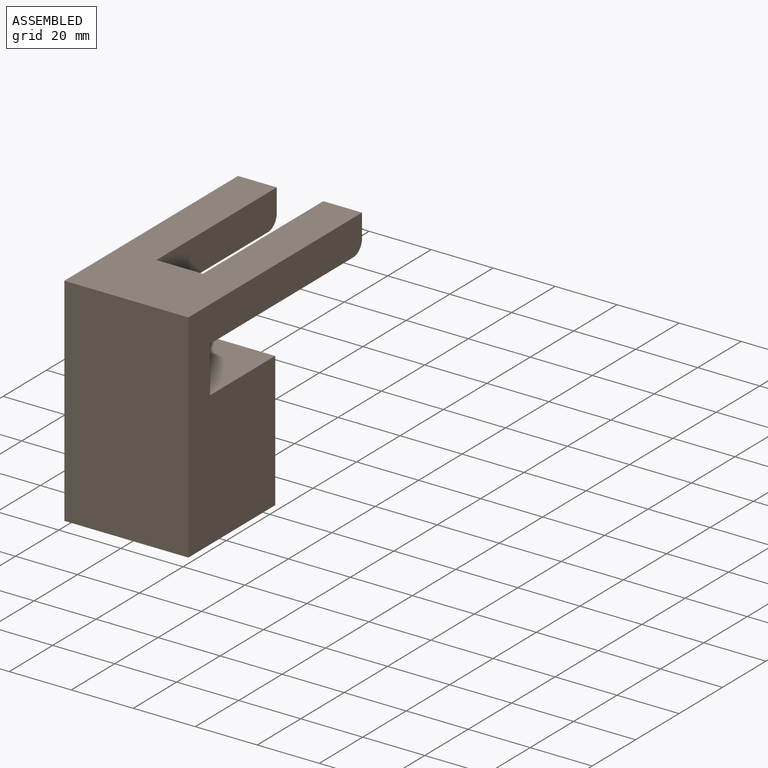
[diagram: assembled view]
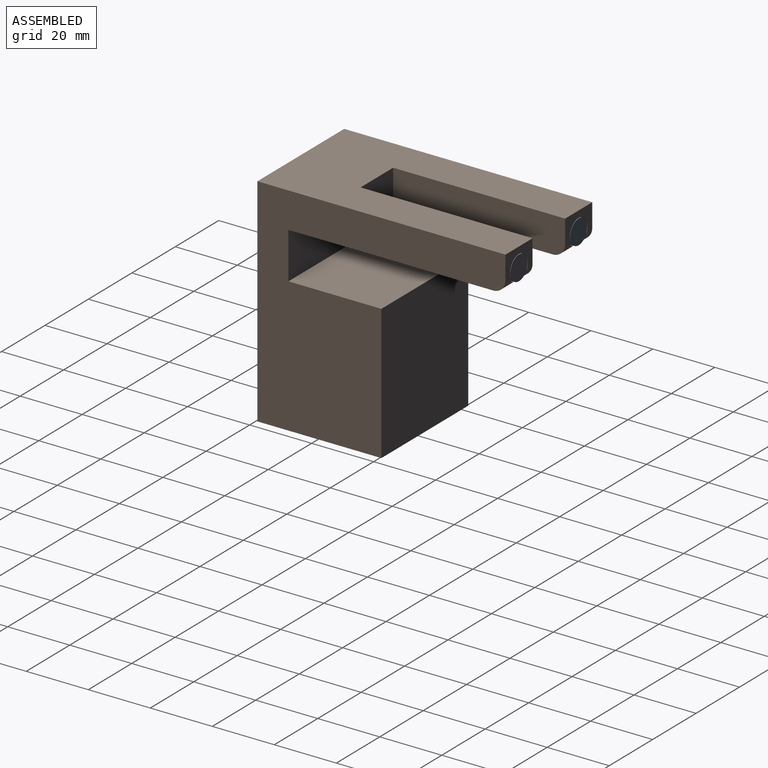
[diagram: assembled view, second angle]
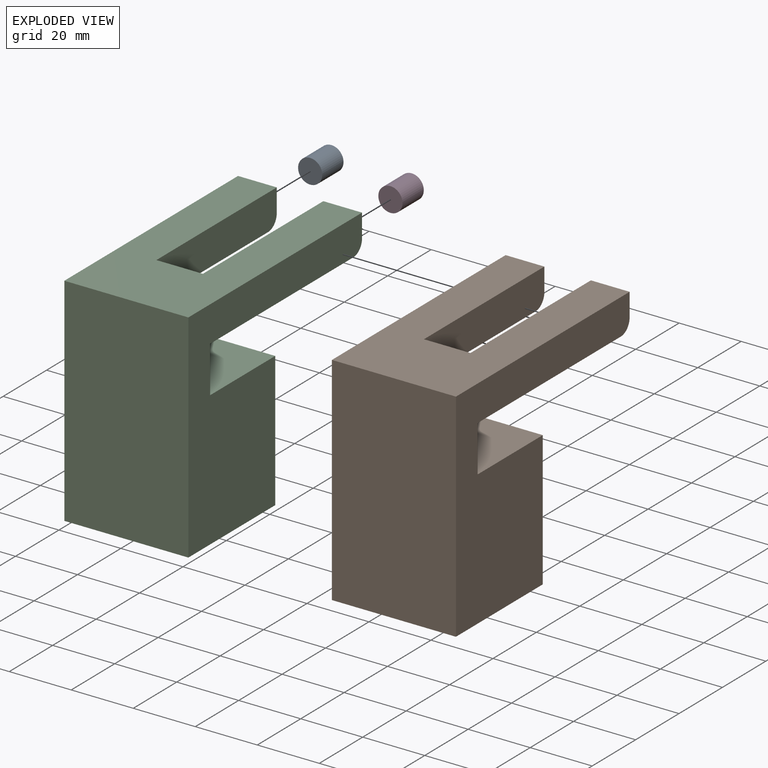
[diagram: exploded view]
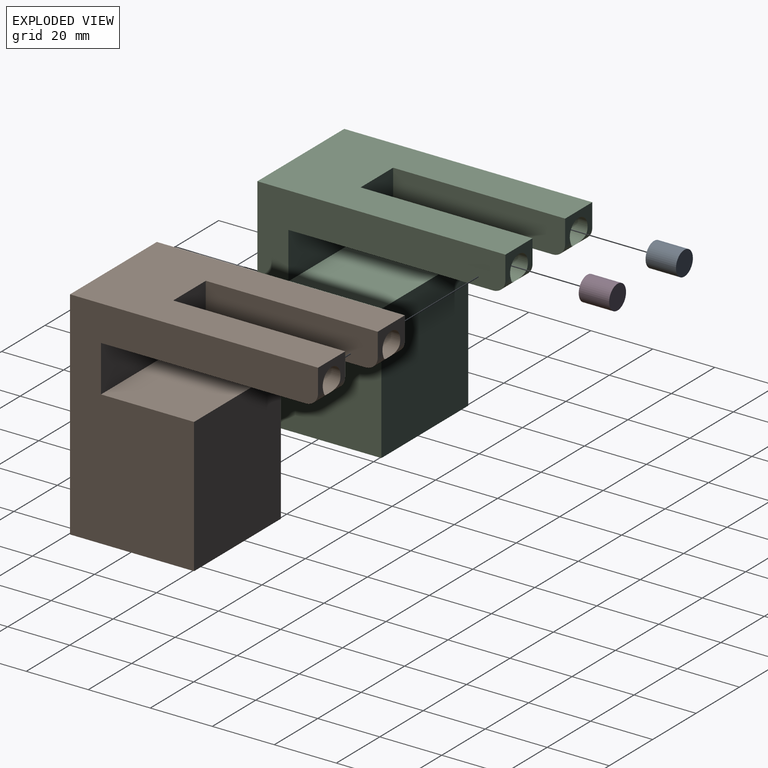
[diagram: exploded view, second angle]
ASSEMBLY  parts=4 mates=2
PART A: 3 faces, bbox 7.8x9.8x7.8 mm
  f0: cylinder r=3.9mm len=9.8mm, axis (0,1,0), area 240.1mm2, adj f1,f2
  f1: plane 7.8x7.8mm, normal (0,-1,0), area 47.8mm2, adj f0
  f2: plane 7.8x7.8mm, normal (0,1,0), area 47.8mm2, adj f0
PART B: 20 faces, bbox 40x80x70 mm
  f0: plane 12.5x7.5mm, normal (0,1,0), area 57.3mm2, adj f6,f8,f10,f12,f16
  f1: cylinder r=4mm len=12.5mm, axis (-1,0,0), area 61mm2, adj f5,f7,f11,f13,f18
  f2: plane 43.5x40mm, normal (0,1,0), area 1740mm2, adj f3,f10,f11,f15
  f3: plane 40x30mm, normal (0,0,1), area 1200mm2, adj f2,f4,f10,f11
  f4: plane 40x15mm, normal (0,1,0), area 600mm2, adj f3,f5,f10,f11
  f5: plane 66x40mm, normal (0,0,-1), area 1868mm2, adj f1,f4,f6,f10,f11,f12,f13,f14
  f6: cylinder r=4mm len=12.5mm, axis (-1,0,0), area 61mm2, adj f0,f5,f10,f12,f16
  f7: plane 12.5x7.5mm, normal (0,1,0), area 57.3mm2, adj f1,f8,f11,f13,f18
  f8: plane 80x40mm, normal (0,0,1), area 2368mm2, adj f0,f7,f9,f10,f11,f12,f13,f14
  f9: plane 70x40mm, normal (0,-1,0), area 2800mm2, adj f8,f10,f11,f15
  f10: plane 80x70mm, normal (1,0,0), area 2806.6mm2, adj f0,f2,f3,f4,f5,f6,f8,f9
  f11: plane 80x70mm, normal (-1,0,0), area 2806.6mm2, adj f1,f2,f3,f4,f5,f7,f8,f9
  f12: plane 55.47x11.5mm, normal (-1,0,0), area 634.4mm2, adj f0,f5,f6,f8,f14
  f13: plane 55.47x11.5mm, normal (1,0,0), area 634.4mm2, adj f1,f5,f7,f8,f14
  f14: plane 15x11.5mm, normal (0,1,0), area 172.5mm2, adj f5,f8,f12,f13
  f15: plane 40x40mm, normal (0,0,-1), area 1600mm2, adj f2,f9,f10,f11
  f16: cylinder r=4.1mm len=10mm, axis (0,1,0), area 251.6mm2, adj f0,f6,f17
  f17: plane 8.2x8.2mm, normal (0,1,0), area 52.8mm2, adj f16
  f18: cylinder r=4.1mm len=10mm, axis (0,1,0), area 251.6mm2, adj f1,f7,f19
  f19: plane 8.2x8.2mm, normal (0,1,0), area 52.8mm2, adj f18
PART C: same geometry as B
PART D: 3 faces, bbox 7.8x9.8x7.8 mm
  f0: cylinder r=3.9mm len=9.8mm, axis (0,1,0), area 240.1mm2, adj f1,f2
  f1: plane 7.8x7.8mm, normal (0,-1,0), area 47.8mm2, adj f0
  f2: plane 7.8x7.8mm, normal (0,1,0), area 47.8mm2, adj f0
PLACE A t=(-27.58,62.51,-25.73)mm
PLACE B t=(-20,-17.49,9.95)mm
PLACE C t=(-20,-17.49,9.95)mm
PLACE D t=(-18.04,62.51,-27.36)mm
MATE slider D.f0 <-> C.f16  axis (0,1,0) through (13.75,62.51,3.7)mm
MATE slider A.f0 <-> C.f18  axis (0,1,0) through (-13.75,62.51,3.7)mm
